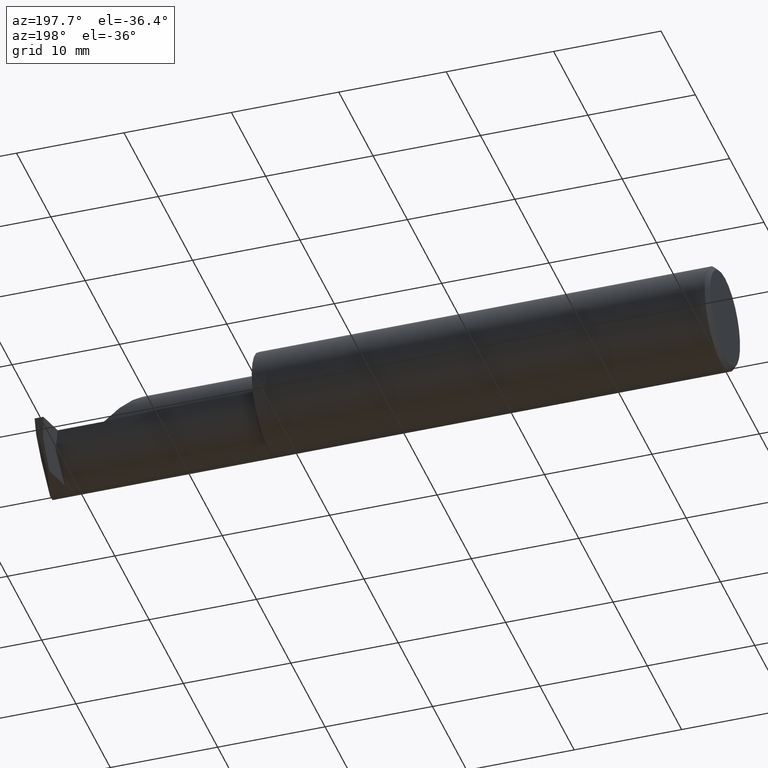
[diagram: clean part render]
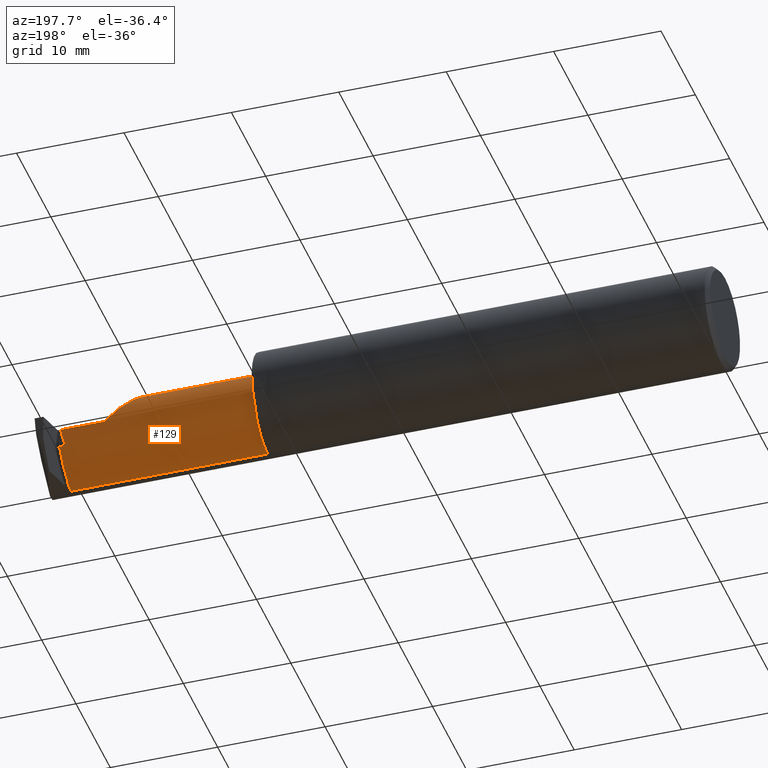
[diagram: same view with one face highlighted and labeled with its STEP entity id]
A machine part, auxiliary view. The second image highlights one B-rep face of the part: STEP entity #129.
In plain terms, the highlighted cylindrical surface (partial cylindrical patch) has radius 3.937 mm, axis along (-1, -0, -0).
Its self-contained STEP definition (entity closure, byte-faithful):
#1 = EDGE_CURVE ( 'NONE', #776, #972, #684, .T. ) ;
#9 = ORIENTED_EDGE ( 'NONE', *, *, #323, .T. ) ;
#16 = CARTESIAN_POINT ( 'NONE',  ( 2.159365813042176008, 0.07944494647492639228, 0.09098418695782312104 ) ) ;
#22 = CARTESIAN_POINT ( 'NONE',  ( 2.397371745677374211, 0.06655594585375997074, -0.06235144369900125216 ) ) ;
#25 = DIRECTION ( 'NONE',  ( -1.000000000000000000, -0.000000000000000000, -0.000000000000000000 ) ) ;
#36 = CARTESIAN_POINT ( 'NONE',  ( 2.419999999999999929, -0.02721703491517181786, -0.1473370885830947163 ) ) ;
#38 = DIRECTION ( 'NONE',  ( -1.000000000000000000, -0.000000000000000000, -0.000000000000000000 ) ) ;
#40 = EDGE_CURVE ( 'NONE', #878, #945, #382, .T. ) ;
#41 = ORIENTED_EDGE ( 'NONE', *, *, #577, .F. ) ;
#43 = CIRCLE ( 'NONE', #730, 0.1549999999999999989 ) ;
#65 =( BOUNDED_CURVE ( )  B_SPLINE_CURVE ( 3, ( #464, #16, #677, #851 ),
 .UNSPECIFIED., .F., .T. ) 
 B_SPLINE_CURVE_WITH_KNOTS ( ( 4, 4 ),
 ( 4.714647046819741227, 6.283185307179586232 ),
 .UNSPECIFIED. ) 
 CURVE ( )  GEOMETRIC_REPRESENTATION_ITEM ( )  RATIONAL_B_SPLINE_CURVE ( ( 1.000000000000000000, 0.8052697849207437475, 0.8052697849207437475, 1.000000000000000000 ) ) 
 REPRESENTATION_ITEM ( '' )  );
#75 = ORIENTED_EDGE ( 'NONE', *, *, #502, .F. ) ;
#83 = CARTESIAN_POINT ( 'NONE',  ( 1.675000000000000044, 0.06655594585375997074, -0.06235144369900125216 ) ) ;
#94 = VERTEX_POINT ( 'NONE', #499 ) ;
#111 = CARTESIAN_POINT ( 'NONE',  ( 2.410465799823614308, 0.07964999999999992919, 0.000000000000000000 ) ) ;
#119 = VERTEX_POINT ( 'NONE', #860 ) ;
#129 = ADVANCED_FACE ( 'NONE', ( #490 ), #863, .T. ) ;
#132 = VERTEX_POINT ( 'NONE', #36 ) ;
#133 = DIRECTION ( 'NONE',  ( 1.000000000000000000, 0.000000000000000000, 0.000000000000000000 ) ) ;
#138 = VECTOR ( 'NONE', #392, 39.37007874015748143 ) ;
#142 = VECTOR ( 'NONE', #701, 39.37007874015748143 ) ;
#160 = VERTEX_POINT ( 'NONE', #637 ) ;
#170 = CARTESIAN_POINT ( 'NONE',  ( 2.250000000000000000, 0.07964960483820594794, 0.0003499999999991848933 ) ) ;
#185 = ORIENTED_EDGE ( 'NONE', *, *, #40, .F. ) ;
#194 = CARTESIAN_POINT ( 'NONE',  ( 2.397371745677374211, 0.06655594585375997074, -0.06235144369900125216 ) ) ;
#196 = EDGE_LOOP ( 'NONE', ( #694, #534, #429, #321, #75, #234, #415, #41, #185, #606, #509, #9, #527 ) ) ;
#202 = CARTESIAN_POINT ( 'NONE',  ( 2.410465799823614308, 0.07964999999999992919, 0.000000000000000000 ) ) ;
#209 = CARTESIAN_POINT ( 'NONE',  ( 1.675000000000000044, -0.02721703491517181786, -0.1473370885830947163 ) ) ;
#214 = LINE ( 'NONE', #741, #768 ) ;
#234 = ORIENTED_EDGE ( 'NONE', *, *, #898, .T. ) ;
#245 = EDGE_CURVE ( 'NONE', #673, #972, #43, .T. ) ;
#256 = DIRECTION ( 'NONE',  ( 0.000000000000000000, 0.000000000000000000, 1.000000000000000000 ) ) ;
#269 = DIRECTION ( 'NONE',  ( -1.000000000000000000, -0.000000000000000000, -0.000000000000000000 ) ) ;
#273 =( BOUNDED_CURVE ( )  B_SPLINE_CURVE ( 3, ( #22, #420, #567, #111 ),
 .UNSPECIFIED., .F., .T. ) 
 B_SPLINE_CURVE_WITH_KNOTS ( ( 4, 4 ),
 ( 1.156804228221840702, 1.570796326794896780 ),
 .UNSPECIFIED. ) 
 CURVE ( )  GEOMETRIC_REPRESENTATION_ITEM ( )  RATIONAL_B_SPLINE_CURVE ( ( 1.000000000000000000, 0.9857684695413670983, 0.9857684695413670983, 1.000000000000000000 ) ) 
 REPRESENTATION_ITEM ( '' )  );
#283 = DIRECTION ( 'NONE',  ( 0.000000000000000000, 0.000000000000000000, -1.000000000000000000 ) ) ;
#293 = DIRECTION ( 'NONE',  ( 0.000000000000000000, 0.000000000000000000, 1.000000000000000000 ) ) ;
#321 = ORIENTED_EDGE ( 'NONE', *, *, #1, .F. ) ;
#323 = EDGE_CURVE ( 'NONE', #160, #872, #764, .T. ) ;
#328 = AXIS2_PLACEMENT_3D ( 'NONE', #590, #38, #293 ) ;
#354 = VECTOR ( 'NONE', #481, 39.37007874015748143 ) ;
#382 = LINE ( 'NONE', #83, #138 ) ;
#388 = CIRCLE ( 'NONE', #328, 0.1549999999999999989 ) ;
#392 = DIRECTION ( 'NONE',  ( -1.000000000000000000, -0.000000000000000000, -0.000000000000000000 ) ) ;
#400 = CARTESIAN_POINT ( 'NONE',  ( 2.419999999999999929, -0.07535000000000005582, 0.000000000000000000 ) ) ;
#413 = DIRECTION ( 'NONE',  ( -1.000000000000000000, -0.000000000000000000, -0.000000000000000000 ) ) ;
#415 = ORIENTED_EDGE ( 'NONE', *, *, #982, .T. ) ;
#417 = AXIS2_PLACEMENT_3D ( 'NONE', #400, #269, #256 ) ;
#420 = CARTESIAN_POINT ( 'NONE',  ( 2.401513823449298535, 0.07522230237091669103, -0.04262764187959411366 ) ) ;
#429 = ORIENTED_EDGE ( 'NONE', *, *, #245, .T. ) ;
#434 = VECTOR ( 'NONE', #413, 39.37007874015748143 ) ;
#455 = VECTOR ( 'NONE', #133, 39.37007874015748143 ) ;
#461 = CARTESIAN_POINT ( 'NONE',  ( 1.675000000000000044, -0.07535000000000005582, 0.1549999999999999989 ) ) ;
#462 = CARTESIAN_POINT ( 'NONE',  ( 2.095349999999999380, -0.07535000000000005582, 0.1549999999999999989 ) ) ;
#464 = CARTESIAN_POINT ( 'NONE',  ( 2.250000000000000000, 0.07964960483820594794, 0.0003499999999991848933 ) ) ;
#481 = DIRECTION ( 'NONE',  ( -1.000000000000000000, -0.000000000000000000, -0.000000000000000000 ) ) ;
#483 = LINE ( 'NONE', #931, #142 ) ;
#490 = FACE_OUTER_BOUND ( 'NONE', #196, .T. ) ;
#492 = DIRECTION ( 'NONE',  ( 0.000000000000000000, 0.000000000000000000, 1.000000000000000000 ) ) ;
#499 = CARTESIAN_POINT ( 'NONE',  ( 2.419999999999999929, 0.06139050547019142545, -0.07298653412621075587 ) ) ;
#502 = EDGE_CURVE ( 'NONE', #680, #776, #65, .T. ) ;
#509 = ORIENTED_EDGE ( 'NONE', *, *, #558, .T. ) ;
#527 = ORIENTED_EDGE ( 'NONE', *, *, #905, .T. ) ;
#534 = ORIENTED_EDGE ( 'NONE', *, *, #588, .T. ) ;
#558 = EDGE_CURVE ( 'NONE', #94, #160, #483, .T. ) ;
#563 = CARTESIAN_POINT ( 'NONE',  ( 2.250000000000000000, 0.07964999999999992919, -4.469813191451678053E-17 ) ) ;
#567 = CARTESIAN_POINT ( 'NONE',  ( 2.405941521078382106, 0.07964999999999992919, -0.02154377157077452115 ) ) ;
#571 = LINE ( 'NONE', #780, #434 ) ;
#575 = DIRECTION ( 'NONE',  ( 1.000000000000000000, 0.000000000000000000, 0.000000000000000000 ) ) ;
#577 = EDGE_CURVE ( 'NONE', #945, #920, #273, .T. ) ;
#581 = VERTEX_POINT ( 'NONE', #563 ) ;
#588 = EDGE_CURVE ( 'NONE', #119, #673, #571, .T. ) ;
#590 = CARTESIAN_POINT ( 'NONE',  ( 2.250000000000000000, -0.07535000000000005582, 0.000000000000000000 ) ) ;
#598 = DIRECTION ( 'NONE',  ( -1.000000000000000000, -0.000000000000000000, -0.000000000000000000 ) ) ;
#606 = ORIENTED_EDGE ( 'NONE', *, *, #631, .T. ) ;
#629 = DIRECTION ( 'NONE',  ( 0.000000000000000000, 0.000000000000000000, 1.000000000000000000 ) ) ;
#630 = CARTESIAN_POINT ( 'NONE',  ( 2.416847974081296702, -0.02721703491517182480, -0.1473370885830947163 ) ) ;
#631 = EDGE_CURVE ( 'NONE', #878, #94, #948, .T. ) ;
#637 = CARTESIAN_POINT ( 'NONE',  ( 2.416847974081296702, 0.06139050547019143239, -0.07298653412621075587 ) ) ;
#658 = CARTESIAN_POINT ( 'NONE',  ( 1.699999999999999956, -0.07535000000000005582, 0.000000000000000000 ) ) ;
#667 = DIRECTION ( 'NONE',  ( 0.000000000000000000, -5.342525310190192507E-15, -1.000000000000000000 ) ) ;
#673 = VERTEX_POINT ( 'NONE', #862 ) ;
#675 = EDGE_CURVE ( 'NONE', #132, #119, #969, .T. ) ;
#677 = CARTESIAN_POINT ( 'NONE',  ( 2.095349999999998936, 0.01528441802401257592, 0.1550000000000000266 ) ) ;
#680 = VERTEX_POINT ( 'NONE', #170 ) ;
#684 = LINE ( 'NONE', #461, #354 ) ;
#694 = ORIENTED_EDGE ( 'NONE', *, *, #675, .T. ) ;
#701 = DIRECTION ( 'NONE',  ( -1.000000000000000000, -0.000000000000000000, -0.000000000000000000 ) ) ;
#704 = CARTESIAN_POINT ( 'NONE',  ( 2.419999999999999929, 0.06655594585375997074, -0.06235144369900125216 ) ) ;
#730 = AXIS2_PLACEMENT_3D ( 'NONE', #658, #816, #283 ) ;
#731 = LINE ( 'NONE', #209, #455 ) ;
#741 = CARTESIAN_POINT ( 'NONE',  ( 1.675000000000000044, 0.07964999999999992919, -4.469813191451678053E-17 ) ) ;
#764 = CIRCLE ( 'NONE', #840, 0.1549999999999999989 ) ;
#768 = VECTOR ( 'NONE', #575, 39.37007874015748143 ) ;
#776 = VERTEX_POINT ( 'NONE', #462 ) ;
#780 = CARTESIAN_POINT ( 'NONE',  ( 1.675000000000000044, -0.07535000000000004194, -0.1549999999999999989 ) ) ;
#781 = CARTESIAN_POINT ( 'NONE',  ( 1.675000000000000044, -0.07535000000000005582, 0.000000000000000000 ) ) ;
#784 = DIRECTION ( 'NONE',  ( -1.000000000000000000, -0.000000000000000000, -0.000000000000000000 ) ) ;
#816 = DIRECTION ( 'NONE',  ( 1.000000000000000000, 0.000000000000000000, 0.000000000000000000 ) ) ;
#840 = AXIS2_PLACEMENT_3D ( 'NONE', #882, #598, #667 ) ;
#851 = CARTESIAN_POINT ( 'NONE',  ( 2.095349999999999380, -0.07535000000000005582, 0.1549999999999999989 ) ) ;
#860 = CARTESIAN_POINT ( 'NONE',  ( 2.419999999999999929, -0.07534999999999998643, -0.1549999999999999156 ) ) ;
#862 = CARTESIAN_POINT ( 'NONE',  ( 1.699999999999999956, -0.07535000000000004194, -0.1549999999999999989 ) ) ;
#863 = CYLINDRICAL_SURFACE ( 'NONE', #870, 0.1549999999999999989 ) ;
#870 = AXIS2_PLACEMENT_3D ( 'NONE', #781, #784, #629 ) ;
#872 = VERTEX_POINT ( 'NONE', #630 ) ;
#878 = VERTEX_POINT ( 'NONE', #704 ) ;
#882 = CARTESIAN_POINT ( 'NONE',  ( 2.416847974081296702, -0.07535000000000005582, 0.000000000000000000 ) ) ;
#888 = AXIS2_PLACEMENT_3D ( 'NONE', #943, #25, #492 ) ;
#898 = EDGE_CURVE ( 'NONE', #680, #581, #388, .T. ) ;
#905 = EDGE_CURVE ( 'NONE', #872, #132, #731, .T. ) ;
#920 = VERTEX_POINT ( 'NONE', #202 ) ;
#931 = CARTESIAN_POINT ( 'NONE',  ( 1.675000000000000044, 0.06139050547019142545, -0.07298653412621075587 ) ) ;
#943 = CARTESIAN_POINT ( 'NONE',  ( 2.419999999999999929, -0.07535000000000005582, 0.000000000000000000 ) ) ;
#945 = VERTEX_POINT ( 'NONE', #194 ) ;
#948 = CIRCLE ( 'NONE', #417, 0.1549999999999999989 ) ;
#969 = CIRCLE ( 'NONE', #888, 0.1549999999999999989 ) ;
#970 = CARTESIAN_POINT ( 'NONE',  ( 1.699999999999999956, -0.07535000000000005582, 0.1549999999999999989 ) ) ;
#972 = VERTEX_POINT ( 'NONE', #970 ) ;
#982 = EDGE_CURVE ( 'NONE', #581, #920, #214, .T. ) ;